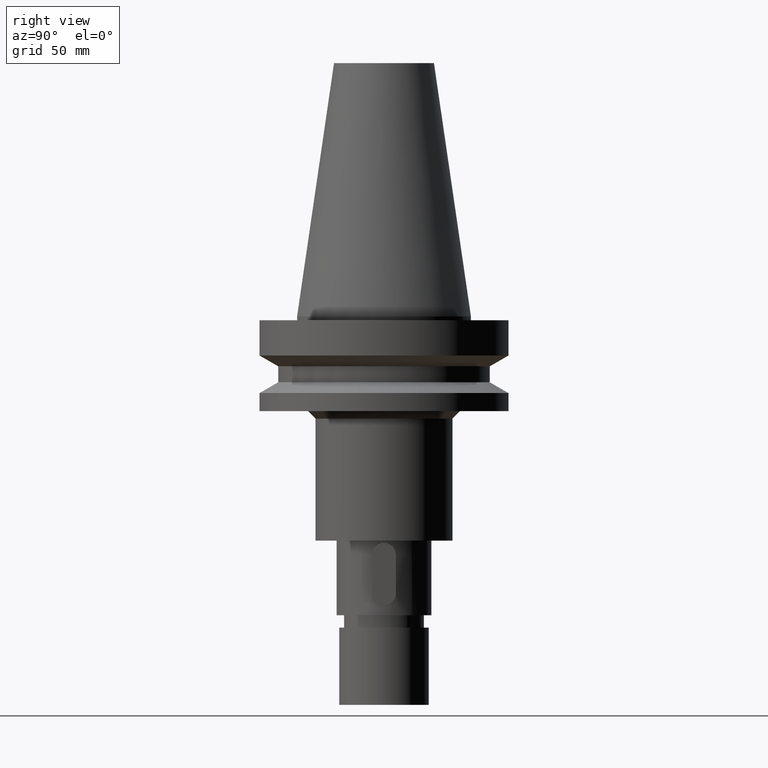
[diagram: clean part render]
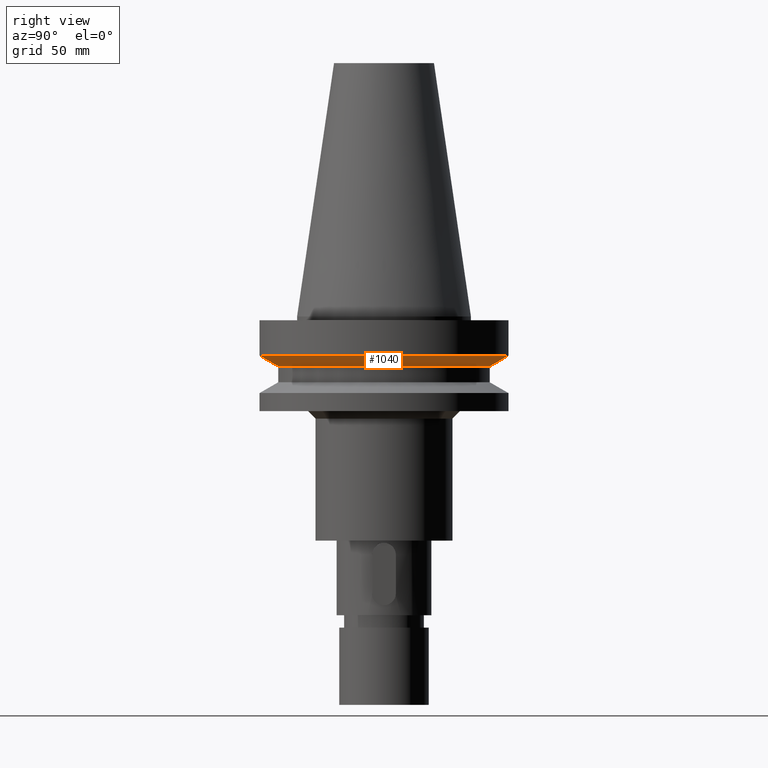
[diagram: same view with one face highlighted and labeled with its STEP entity id]
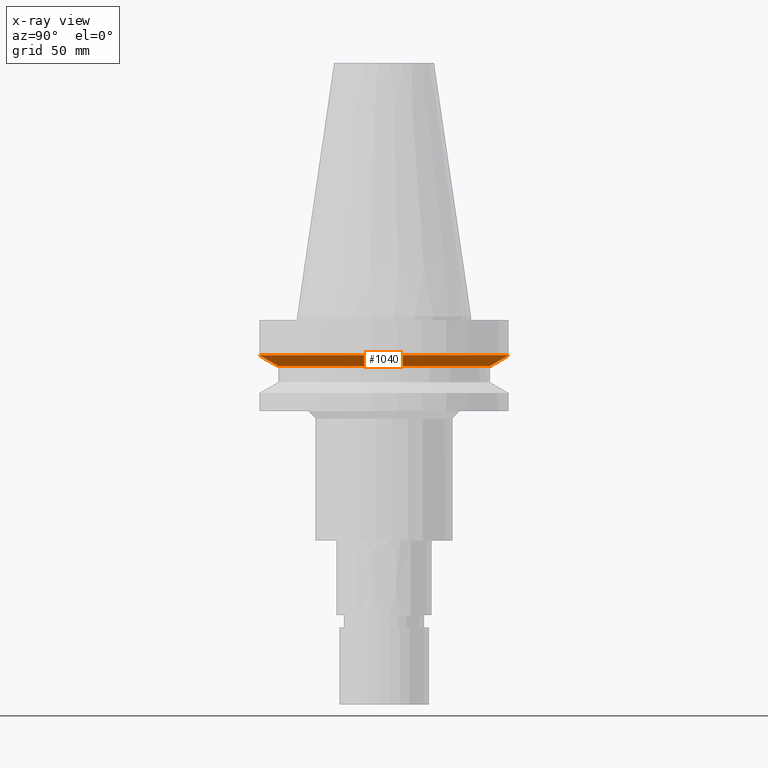
[diagram: x-ray of the same camera — body ghosted, the highlighted face saturated]
A machine part, right view. The second image highlights one B-rep face of the part: STEP entity #1040.
The next image is the same camera in x-ray: the body ghosted, the highlighted face saturated — about 0% of this face is hidden behind the body in this view.
In plain terms, the highlighted conical surface has half-angle 60 deg.
Its self-contained STEP definition (entity closure, byte-faithful):
#224=DIRECTION('',(0.E0,8.660254037845E-1,-4.999999999999E-1));
#225=VECTOR('',#224,8.660254037843E0);
#226=CARTESIAN_POINT('',(0.E0,-5.E1,-1.566269223573E1));
#227=LINE('',#226,#225);
#239=DIRECTION('',(0.E0,-8.660254037845E-1,-4.999999999999E-1));
#240=VECTOR('',#239,8.660254037843E0);
#241=CARTESIAN_POINT('',(0.E0,5.E1,-1.566269223573E1));
#242=LINE('',#241,#240);
#246=CARTESIAN_POINT('',(0.E0,1.006319759054E-14,-1.999281925465E1));
#247=DIRECTION('',(0.E0,0.E0,-1.E0));
#248=DIRECTION('',(0.E0,1.E0,0.E0));
#249=AXIS2_PLACEMENT_3D('',#246,#247,#248);
#254=CARTESIAN_POINT('',(0.E0,1.006319759054E-14,-1.566269223573E1));
#255=DIRECTION('',(0.E0,0.E0,1.E0));
#256=DIRECTION('',(0.E0,-1.E0,0.E0));
#257=AXIS2_PLACEMENT_3D('',#254,#255,#256);
#738=CARTESIAN_POINT('',(0.E0,5.E1,-1.566269223573E1));
#739=VERTEX_POINT('',#738);
#740=CARTESIAN_POINT('',(1.224646799147E-14,-5.E1,-1.566269223573E1));
#741=VERTEX_POINT('',#740);
#742=CARTESIAN_POINT('',(0.E0,4.25E1,-1.999281925465E1));
#743=VERTEX_POINT('',#742);
#744=CARTESIAN_POINT('',(0.E0,-4.25E1,-1.999281925465E1));
#745=VERTEX_POINT('',#744);
#1028=CARTESIAN_POINT('',(0.E0,1.006319759054E-14,-1.782775574519E1));
#1029=DIRECTION('',(0.E0,0.E0,1.E0));
#1030=DIRECTION('',(0.E0,1.E0,0.E0));
#1031=AXIS2_PLACEMENT_3D('',#1028,#1029,#1030);
#1032=CONICAL_SURFACE('',#1031,4.625E1,6.E1);
#1033=ORIENTED_EDGE('',*,*,#1018,.T.);
#1035=ORIENTED_EDGE('',*,*,#1034,.T.);
#1036=ORIENTED_EDGE('',*,*,#1021,.F.);
#1037=ORIENTED_EDGE('',*,*,#992,.T.);
#1038=EDGE_LOOP('',(#1033,#1035,#1036,#1037));
#1039=FACE_OUTER_BOUND('',#1038,.F.);
#250=CIRCLE('',#249,4.25E1);
#258=CIRCLE('',#257,5.E1);
#992=EDGE_CURVE('',#741,#739,#258,.T.);
#1018=EDGE_CURVE('',#739,#743,#242,.T.);
#1021=EDGE_CURVE('',#741,#745,#227,.T.);
#1034=EDGE_CURVE('',#743,#745,#250,.T.);
#1040=ADVANCED_FACE('',(#1039),#1032,.T.);